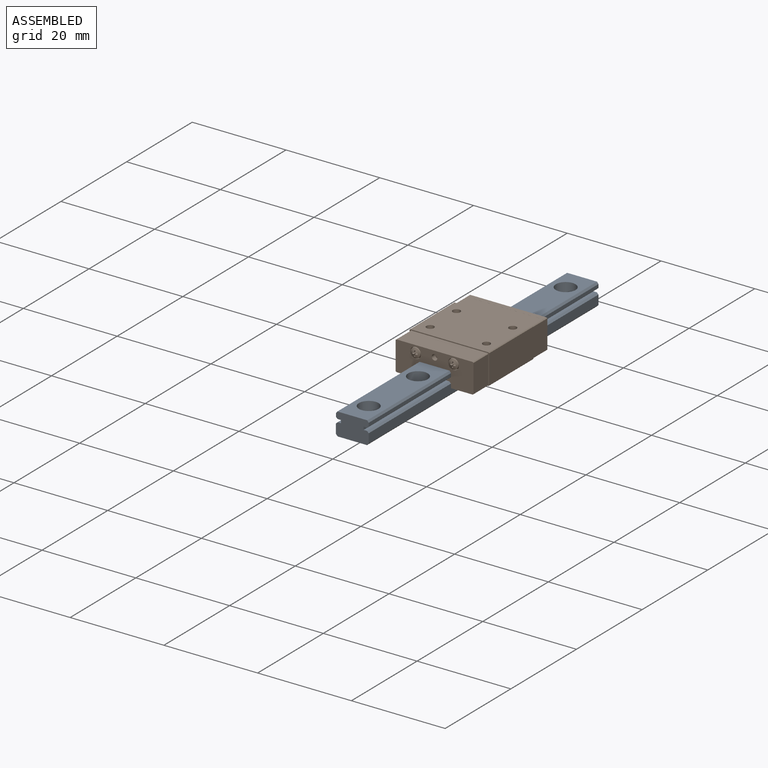
[diagram: assembled view]
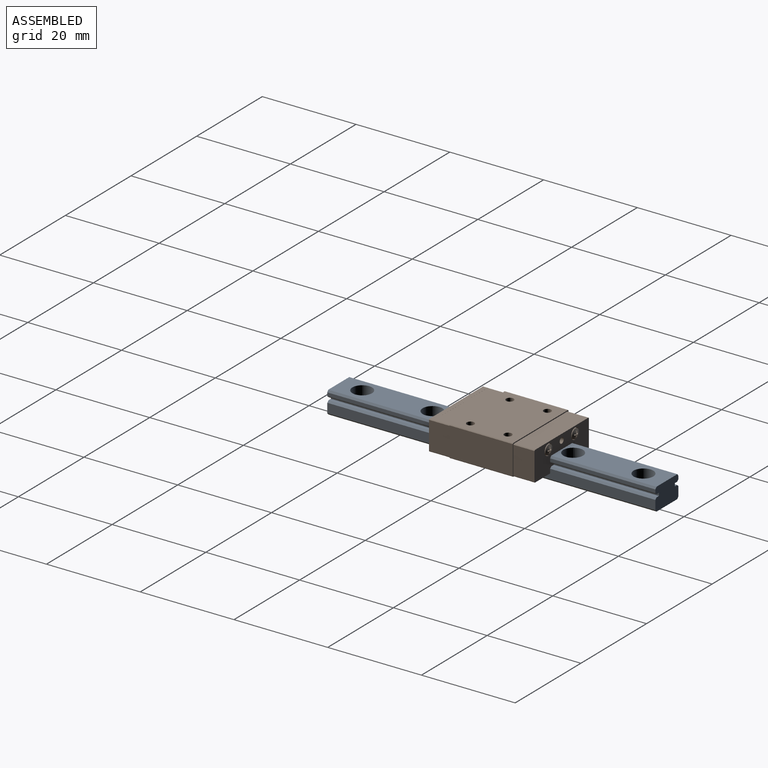
[diagram: assembled view, second angle]
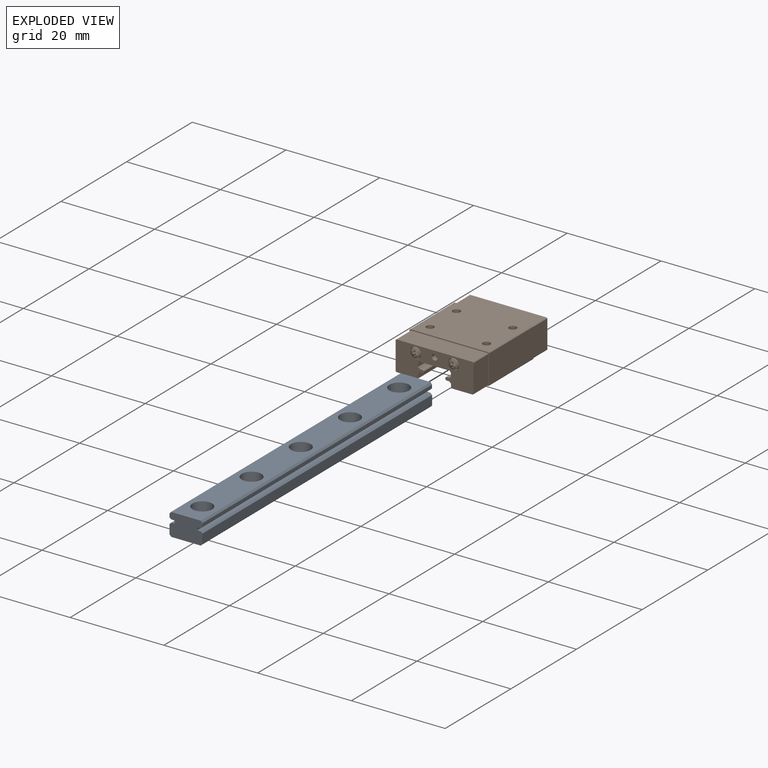
[diagram: exploded view]
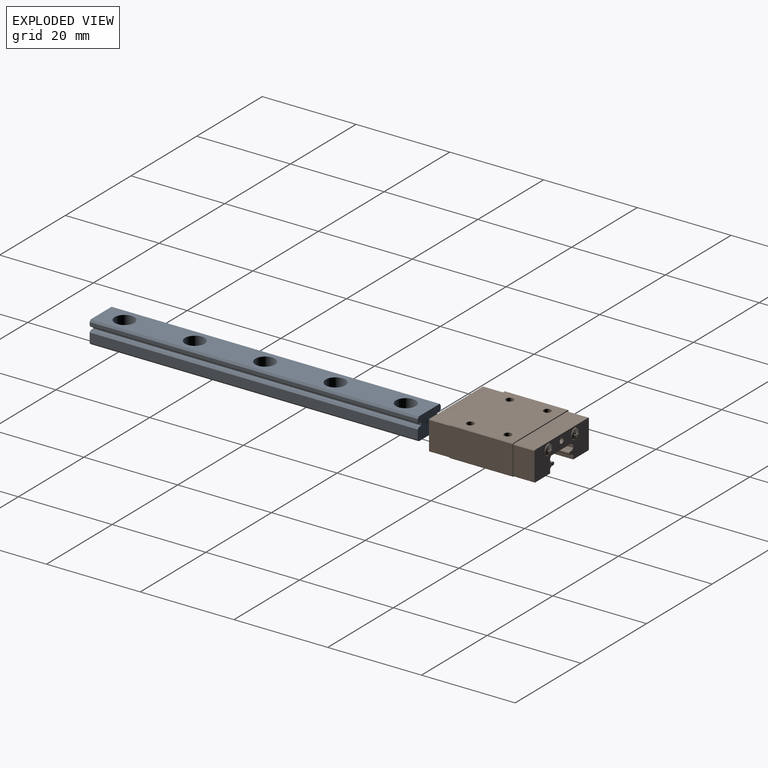
[diagram: exploded view, second angle]
ASSEMBLY  parts=2 mates=2
PART A: 37 faces, bbox 7x70x4.8 mm
  f0: plane 70x6.38mm, normal (0,0,1), area 377mm2, adj f1,f11,f12,f13,f22,f24,f26,f28
  f1: plane 70x0.4mm, normal (-0.8,0,0.6), area 35.4mm2, adj f0,f2,f11,f12
  f2: plane 70x0.73mm, normal (-1,0,0), area 51.2mm2, adj f1,f3,f11,f12
  f3: plane 70x0.34mm, normal (-0.66,0,-0.75), area 32mm2, adj f2,f4,f11,f12
  f4: plane 70x0.73mm, normal (0,0,-1), area 51.2mm2, adj f3,f5,f11,f12
  f5: plane 70x0.62mm, normal (-1,0,0), area 43.2mm2, adj f4,f6,f11,f12
  f6: plane 70x0.7mm, normal (0,0,1), area 49.2mm2, adj f5,f7,f11,f12
  f7: plane 70x0.38mm, normal (-0.68,0,0.73), area 36.2mm2, adj f6,f8,f11,f12
  f8: plane 70x2.01mm, normal (-1,0,0), area 140.9mm2, adj f7,f9,f11,f12
  f9: plane 70x0.38mm, normal (-0.71,0,-0.71), area 37.6mm2, adj f8,f10,f11,f12
  f10: plane 70x6.24mm, normal (0,0,-1), area 414.4mm2, adj f9,f11,f12,f21,f32,f33,f34,f35
  f11: plane 7x4.8mm, normal (0,-1,0), area 31.7mm2, adj f0,f1,f2,f3,f4,f5,f6,f7
  f12: plane 7x4.8mm, normal (0,1,0), area 31.7mm2, adj f0,f1,f2,f3,f4,f5,f6,f7
  f13: plane 70x0.4mm, normal (0.8,0,0.6), area 35.4mm2, adj f0,f11,f12,f14
  f14: plane 70x0.73mm, normal (1,0,0), area 51.2mm2, adj f11,f12,f13,f15
  f15: plane 70x0.34mm, normal (0.66,0,-0.75), area 32mm2, adj f11,f12,f14,f16
  f16: plane 70x0.73mm, normal (0,0,-1), area 51.2mm2, adj f11,f12,f15,f17
  f17: plane 70x0.62mm, normal (1,0,0), area 43.2mm2, adj f11,f12,f16,f18
  f18: plane 70x0.7mm, normal (0,0,1), area 49.2mm2, adj f11,f12,f17,f19
  f19: plane 70x0.38mm, normal (0.68,0,0.73), area 36.2mm2, adj f11,f12,f18,f20
  f20: plane 70x2.01mm, normal (1,0,0), area 140.9mm2, adj f11,f12,f19,f21
  f21: plane 70x0.38mm, normal (0.71,0,-0.71), area 37.6mm2, adj f10,f11,f12,f20
  f22: cylinder r=2.1mm len=4.2mm, axis (0,0,1), area 30.3mm2, adj f0,f23
  f23: plane 4.2x4.2mm, normal (0,0,1), area 9.3mm2, adj f22,f34
  f24: cylinder r=2.1mm len=4.2mm, axis (0,0,1), area 30.3mm2, adj f0,f25
  f25: plane 4.2x4.2mm, normal (0,0,1), area 9.3mm2, adj f24,f35
  f26: cylinder r=2.1mm len=4.2mm, axis (0,0,1), area 30.3mm2, adj f0,f27
  f27: plane 4.2x4.2mm, normal (0,0,1), area 9.3mm2, adj f26,f36
  f28: cylinder r=2.1mm len=4.2mm, axis (0,0,1), area 30.3mm2, adj f0,f29
  f29: plane 4.2x4.2mm, normal (0,0,1), area 9.3mm2, adj f28,f32
  f30: cylinder r=2.1mm len=4.2mm, axis (0,0,1), area 30.3mm2, adj f0,f31
  f31: plane 4.2x4.2mm, normal (0,0,1), area 9.3mm2, adj f30,f33
  f32: cylinder r=1.2mm len=2.5mm, axis (0,0,1), area 18.8mm2, adj f10,f29
  f33: cylinder r=1.2mm len=2.5mm, axis (0,0,1), area 18.8mm2, adj f10,f31
  f34: cylinder r=1.2mm len=2.5mm, axis (0,0,1), area 18.8mm2, adj f10,f23
  f35: cylinder r=1.2mm len=2.5mm, axis (0,0,1), area 18.8mm2, adj f10,f25
  f36: cylinder r=1.2mm len=2.5mm, axis (0,0,1), area 18.8mm2, adj f10,f27
PART B: 336 faces, bbox 17x23.4x6.5 mm
  f0: plane 13.5x0.15mm, normal (-0.71,0,-0.71), area 2.9mm2, adj f1,f320,f322,f323
  f1: plane 17x6.5mm, normal (0,1,0), area 6.1mm2, adj f0,f2,f167,f168,f169,f170,f171,f172
  f2: plane 13.5x0.15mm, normal (0.71,0,-0.71), area 2.9mm2, adj f1,f320,f321,f327
  f3: cylinder r=0.8mm len=2.5mm, axis (0,0,1), area 12.6mm2, adj f4,f325
  f4: cone r=889.02mm half-angle=62.7deg, axis (0,0,1), area 2.3mm2, adj f3
  f5: cylinder r=0.8mm len=2.5mm, axis (0,0,1), area 12.6mm2, adj f6,f325
  f6: cone r=889.02mm half-angle=62.7deg, axis (0,0,1), area 2.3mm2, adj f5
  f7: cylinder r=0.8mm len=2.5mm, axis (0,0,1), area 12.6mm2, adj f8,f325
  f8: cone r=889.02mm half-angle=62.7deg, axis (0,0,1), area 2.3mm2, adj f7
  f9: cylinder r=0.8mm len=2.5mm, axis (0,0,1), area 12.6mm2, adj f10,f325
  f10: cone r=889.02mm half-angle=62.7deg, axis (0,0,1), area 2.3mm2, adj f9
  f11: cylinder r=0.35mm len=20.5mm, axis (0,1,0), area 28.2mm2, adj f33,f151,f176,f297,f317,f318
  f12: cylinder r=0.35mm len=20.5mm, axis (0,1,0), area 28.2mm2, adj f31,f152,f178,f296,f310,f311
  f13: cylinder r=0.35mm len=1mm, axis (0,1,0), area 1.4mm2, adj f176,f278,f279,f284,f297
  f14: cylinder r=0.35mm len=1mm, axis (0,1,0), area 1.4mm2, adj f178,f265,f266,f284,f296
  f15: cylinder r=0.6mm len=1.2mm, axis (0,-1,0), area 3.8mm2, adj f284,f294
  f16: cylinder r=1.15mm len=2.3mm, axis (0,-1,0), area 3.6mm2, adj f260,f284
  f17: cylinder r=1.15mm len=2.3mm, axis (0,-1,0), area 3.6mm2, adj f259,f284
  f18: cone r=1.1mm half-angle=5deg, axis (0,1,0), area 4.1mm2, adj f19,f260
  f19: cone r=1.05mm half-angle=69.1deg, axis (0,1,0), area 3.1mm2, adj f18,f220,f221,f222,f223,f224,f225,f226
  f20: cone r=1.1mm half-angle=5deg, axis (0,1,0), area 4.1mm2, adj f21,f259
  f21: cone r=1.05mm half-angle=69.1deg, axis (0,1,0), area 3.1mm2, adj f20,f181,f182,f183,f184,f185,f186,f187
  f22: cylinder r=0.35mm len=1mm, axis (0,-1,0), area 1.4mm2, adj f31,f133,f134,f139,f152
  f23: cylinder r=0.35mm len=1mm, axis (0,-1,0), area 1.4mm2, adj f33,f120,f121,f139,f151
  f24: cylinder r=0.6mm len=1.2mm, axis (0,1,0), area 3.8mm2, adj f139,f149
  f25: cylinder r=1.15mm len=2.3mm, axis (0,1,0), area 3.6mm2, adj f115,f139
  f26: cylinder r=1.15mm len=2.3mm, axis (0,1,0), area 3.6mm2, adj f114,f139
  f27: cone r=1.1mm half-angle=5deg, axis (0,-1,0), area 4.1mm2, adj f28,f115
  f28: cone r=1.05mm half-angle=69.1deg, axis (0,-1,0), area 3.1mm2, adj f27,f75,f76,f77,f78,f79,f80,f81
  f29: cone r=1.1mm half-angle=5deg, axis (0,-1,0), area 4.1mm2, adj f30,f114
  f30: cone r=1.05mm half-angle=69.1deg, axis (0,-1,0), area 3.1mm2, adj f29,f36,f37,f38,f39,f40,f41,f42
  f31: plane 0.82x0.15mm, normal (0,-1,0), area 0mm2, adj f12,f22,f132,f133,f163,f311
  f32: plane 16.6x6.3mm, normal (0,-1,0), area 0.2mm2, adj f116,f138,f140,f141,f142,f143,f144,f145
  f33: plane 0.82x0.15mm, normal (0,-1,0), area 0mm2, adj f11,f23,f121,f122,f158,f317
  f34: plane 0.21x0.16mm, normal (0,-1,0), area 0mm2, adj f123,f124,f159,f160
  f35: plane 0.21x0.16mm, normal (0,-1,0), area 0mm2, adj f130,f131,f161,f162
  f36: plane 0.57x0.01mm, normal (-0.99,0,-0.16), area 0mm2, adj f30,f40,f47,f53
  f37: plane 0.73x0.45mm, normal (-0.99,0,-0.16), area 0.3mm2, adj f30,f43,f44,f47
  f38: plane 0.57x0.07mm, normal (-0.16,0,0.99), area 0mm2, adj f30,f42,f45,f47
  f39: plane 0.57x0.03mm, normal (0.16,0,-0.99), area 0mm2, adj f30,f41,f47,f48
  f40: plane 0.57x0.07mm, normal (0.16,0,-0.99), area 0mm2, adj f30,f36,f46,f47
  f41: plane 0.73x0.45mm, normal (0.99,0,0.16), area 0.3mm2, adj f30,f39,f47,f70
  f42: plane 0.57x0.01mm, normal (0.99,0,0.16), area 0mm2, adj f30,f38,f47,f51
  f43: plane 0.57x0.03mm, normal (-0.16,0,0.99), area 0mm2, adj f30,f37,f47,f50
  f44: plane 0.73x0.46mm, normal (0,0,1), area 0.3mm2, adj f30,f37,f47,f72
  f45: plane 0.57x0.08mm, normal (0,0,1), area 0mm2, adj f30,f38,f47,f68
  f46: plane 0.57x0.08mm, normal (0,0,-1), area 0mm2, adj f30,f40,f47,f65
  f47: plane 1.22x1.2mm, normal (0,1,0), area 0.6mm2, adj f36,f37,f38,f39,f40,f41,f42,f43
  f48: plane 0.57x0.01mm, normal (0.99,0,0.1), area 0mm2, adj f30,f39,f47,f52
  f49: plane 0.57x0.01mm, normal (-0.99,0,-0.1), area 0mm2, adj f30,f47,f53,f61
  f50: plane 0.57x0.01mm, normal (-0.99,0,-0.1), area 0mm2, adj f30,f43,f47,f55
  f51: plane 0.57x0.03mm, normal (-0.1,0,0.99), area 0mm2, adj f30,f42,f47,f54
  f52: plane 0.57x0.03mm, normal (0.1,0,-0.99), area 0mm2, adj f30,f47,f48,f56
  f53: plane 0.57x0.03mm, normal (0.1,0,-0.99), area 0mm2, adj f30,f36,f47,f49
  f54: plane 0.57x0.01mm, normal (0.99,0,0.1), area 0mm2, adj f30,f47,f51,f59
  f55: plane 0.57x0.03mm, normal (-0.1,0,0.99), area 0mm2, adj f30,f47,f50,f58
  f56: plane 0.57x0.01mm, normal (1,0,0.05), area 0mm2, adj f30,f47,f52,f60
  f57: plane 0.57x0.01mm, normal (-1,0,-0.05), area 0mm2, adj f30,f47,f61,f66
  f58: plane 0.57x0.01mm, normal (-1,0,-0.05), area 0mm2, adj f30,f47,f55,f63
  f59: plane 0.57x0.03mm, normal (-0.05,0,1), area 0mm2, adj f30,f47,f54,f62
  f60: plane 0.57x0.03mm, normal (0.05,0,-1), area 0mm2, adj f30,f47,f56,f65
  f61: plane 0.57x0.03mm, normal (0.05,0,-1), area 0mm2, adj f30,f47,f49,f57
  f62: plane 0.57x0.01mm, normal (1,0,0.05), area 0mm2, adj f30,f47,f59,f64
  f63: plane 0.57x0.03mm, normal (-0.05,0,1), area 0mm2, adj f30,f47,f58,f68
  f64: plane 0.57x0.03mm, normal (0,0,1), area 0mm2, adj f30,f47,f62,f69
  f65: plane 0.57x0.01mm, normal (1,0,0), area 0mm2, adj f30,f46,f47,f60
  f66: plane 0.57x0.03mm, normal (0,0,-1), area 0mm2, adj f30,f47,f57,f67
  f67: plane 0.74x0.48mm, normal (-1,0,0), area 0.3mm2, adj f30,f47,f66,f73
  f68: plane 0.57x0.01mm, normal (-1,0,0), area 0mm2, adj f30,f45,f47,f63
  f69: plane 0.74x0.48mm, normal (1,0,0), area 0.3mm2, adj f30,f47,f64,f71
  f70: plane 0.73x0.46mm, normal (0,0,-1), area 0.3mm2, adj f30,f41,f47,f74
  f71: plane 0.74x0.48mm, normal (0,0,1), area 0.3mm2, adj f30,f47,f69,f74
  f72: plane 0.57x0.24mm, normal (-1,0,0), area 0.1mm2, adj f30,f44,f47,f73
  f73: plane 0.74x0.48mm, normal (0,0,-1), area 0.3mm2, adj f30,f47,f67,f72
  f74: plane 0.57x0.24mm, normal (1,0,0), area 0.1mm2, adj f30,f47,f70,f71
  f75: plane 0.57x0.01mm, normal (-0.99,0,-0.16), area 0mm2, adj f28,f79,f86,f92
  f76: plane 0.73x0.45mm, normal (-0.99,0,-0.16), area 0.3mm2, adj f28,f82,f83,f86
  f77: plane 0.57x0.07mm, normal (-0.16,0,0.99), area 0mm2, adj f28,f81,f84,f86
  f78: plane 0.57x0.03mm, normal (0.16,0,-0.99), area 0mm2, adj f28,f80,f86,f87
  f79: plane 0.57x0.07mm, normal (0.16,0,-0.99), area 0mm2, adj f28,f75,f85,f86
  f80: plane 0.73x0.45mm, normal (0.99,0,0.16), area 0.3mm2, adj f28,f78,f86,f109
  f81: plane 0.57x0.01mm, normal (0.99,0,0.16), area 0mm2, adj f28,f77,f86,f90
  f82: plane 0.57x0.03mm, normal (-0.16,0,0.99), area 0mm2, adj f28,f76,f86,f89
  f83: plane 0.73x0.46mm, normal (0,0,1), area 0.3mm2, adj f28,f76,f86,f111
  f84: plane 0.57x0.08mm, normal (0,0,1), area 0mm2, adj f28,f77,f86,f107
  f85: plane 0.57x0.08mm, normal (0,0,-1), area 0mm2, adj f28,f79,f86,f104
  f86: plane 1.22x1.2mm, normal (0,1,0), area 0.6mm2, adj f75,f76,f77,f78,f79,f80,f81,f82
  f87: plane 0.57x0.01mm, normal (0.99,0,0.1), area 0mm2, adj f28,f78,f86,f91
  f88: plane 0.57x0.01mm, normal (-0.99,0,-0.1), area 0mm2, adj f28,f86,f92,f100
  f89: plane 0.57x0.01mm, normal (-0.99,0,-0.1), area 0mm2, adj f28,f82,f86,f94
  f90: plane 0.57x0.03mm, normal (-0.1,0,0.99), area 0mm2, adj f28,f81,f86,f93
  f91: plane 0.57x0.03mm, normal (0.1,0,-0.99), area 0mm2, adj f28,f86,f87,f95
  f92: plane 0.57x0.03mm, normal (0.1,0,-0.99), area 0mm2, adj f28,f75,f86,f88
  f93: plane 0.57x0.01mm, normal (0.99,0,0.1), area 0mm2, adj f28,f86,f90,f98
  f94: plane 0.57x0.03mm, normal (-0.1,0,0.99), area 0mm2, adj f28,f86,f89,f97
  f95: plane 0.57x0.01mm, normal (1,0,0.05), area 0mm2, adj f28,f86,f91,f99
  f96: plane 0.57x0.01mm, normal (-1,0,-0.05), area 0mm2, adj f28,f86,f100,f105
  f97: plane 0.57x0.01mm, normal (-1,0,-0.05), area 0mm2, adj f28,f86,f94,f102
  f98: plane 0.57x0.03mm, normal (-0.05,0,1), area 0mm2, adj f28,f86,f93,f101
  f99: plane 0.57x0.03mm, normal (0.05,0,-1), area 0mm2, adj f28,f86,f95,f104
  f100: plane 0.57x0.03mm, normal (0.05,0,-1), area 0mm2, adj f28,f86,f88,f96
  f101: plane 0.57x0.01mm, normal (1,0,0.05), area 0mm2, adj f28,f86,f98,f103
  f102: plane 0.57x0.03mm, normal (-0.05,0,1), area 0mm2, adj f28,f86,f97,f107
  f103: plane 0.57x0.03mm, normal (0,0,1), area 0mm2, adj f28,f86,f101,f108
  f104: plane 0.57x0.01mm, normal (1,0,0), area 0mm2, adj f28,f85,f86,f99
  f105: plane 0.57x0.03mm, normal (0,0,-1), area 0mm2, adj f28,f86,f96,f106
  f106: plane 0.74x0.48mm, normal (-1,0,0), area 0.3mm2, adj f28,f86,f105,f112
  f107: plane 0.57x0.01mm, normal (-1,0,0), area 0mm2, adj f28,f84,f86,f102
  f108: plane 0.74x0.48mm, normal (1,0,0), area 0.3mm2, adj f28,f86,f103,f110
  f109: plane 0.73x0.46mm, normal (0,0,-1), area 0.3mm2, adj f28,f80,f86,f113
  f110: plane 0.74x0.48mm, normal (0,0,1), area 0.3mm2, adj f28,f86,f108,f113
  f111: plane 0.57x0.24mm, normal (-1,0,0), area 0.1mm2, adj f28,f83,f86,f112
  f112: plane 0.74x0.48mm, normal (0,0,-1), area 0.3mm2, adj f28,f86,f106,f111
  f113: plane 0.57x0.24mm, normal (1,0,0), area 0.1mm2, adj f28,f86,f109,f110
  f114: plane 2.3x2.3mm, normal (0,1,0), area 0.4mm2, adj f26,f29
  f115: plane 2.3x2.3mm, normal (0,1,0), area 0.4mm2, adj f25,f27
  f116: plane 1x0.85mm, normal (-1,0,0), area 0.9mm2, adj f32,f117,f139,f141,f151
  f117: cylinder r=0.1mm len=1mm, axis (0,1,0), area 0.1mm2, adj f116,f118,f139,f151
  f118: cylinder r=0.7mm len=1mm, axis (0,-1,0), area 0.4mm2, adj f117,f119,f139,f151
  f119: cylinder r=0.1mm len=1mm, axis (0,1,0), area 0.1mm2, adj f118,f120,f139,f151
  f120: plane 1x0.33mm, normal (0,0,-1), area 0.3mm2, adj f23,f119,f139,f151
  f121: plane 1x0.33mm, normal (0,0,1), area 0.3mm2, adj f23,f33,f122,f139
  f122: cylinder r=0.1mm len=1mm, axis (0,1,0), area 0.1mm2, adj f33,f121,f123,f139,f150
  f123: cylinder r=0.7mm len=1mm, axis (0,-1,0), area 0.4mm2, adj f34,f122,f124,f139,f150
  f124: cylinder r=0.1mm len=1mm, axis (0,1,0), area 0.1mm2, adj f34,f123,f125,f139,f154
  f125: plane 1x0.65mm, normal (-1,0,0), area 0.7mm2, adj f124,f126,f139,f154
  f126: plane 1x0.39mm, normal (-0.79,0,-0.61), area 0.5mm2, adj f125,f127,f139,f154
  f127: plane 6.41x1mm, normal (0,0,-1), area 6.4mm2, adj f126,f128,f139,f154
  f128: plane 1x0.39mm, normal (0.79,0,-0.61), area 0.5mm2, adj f127,f129,f139,f154
  f129: plane 1x0.65mm, normal (1,0,0), area 0.7mm2, adj f128,f130,f139,f154
  f130: cylinder r=0.1mm len=1mm, axis (0,1,0), area 0.1mm2, adj f35,f129,f131,f139,f154
  f131: cylinder r=0.7mm len=1mm, axis (0,-1,0), area 0.4mm2, adj f35,f130,f132,f139,f153
  f132: cylinder r=0.1mm len=1mm, axis (0,1,0), area 0.1mm2, adj f31,f131,f133,f139,f153
  f133: plane 1x0.33mm, normal (0,0,1), area 0.3mm2, adj f22,f31,f132,f139
  f134: plane 1x0.33mm, normal (0,0,-1), area 0.3mm2, adj f22,f135,f139,f152
  f135: cylinder r=0.1mm len=1mm, axis (0,1,0), area 0.1mm2, adj f134,f136,f139,f152
  f136: cylinder r=0.7mm len=1mm, axis (0,-1,0), area 0.4mm2, adj f135,f137,f139,f152
  f137: cylinder r=0.1mm len=1mm, axis (0,1,0), area 0.1mm2, adj f136,f138,f139,f152
  f138: plane 1x0.85mm, normal (1,0,0), area 0.9mm2, adj f32,f137,f139,f140,f152
  f139: plane 16.6x6.3mm, normal (0,1,0), area 73.8mm2, adj f22,f23,f24,f25,f26,f116,f117,f118
  f140: plane 4.64x1mm, normal (0,0,-1), area 4.6mm2, adj f32,f138,f139,f147
  f141: plane 4.64x1mm, normal (0,0,-1), area 4.6mm2, adj f32,f116,f139,f148
  f142: plane 6x1mm, normal (1,0,0), area 6mm2, adj f32,f139,f143,f148
  f143: plane 1x0.15mm, normal (0.71,0,0.71), area 0.2mm2, adj f32,f139,f142,f144
  f144: plane 16.3x1mm, normal (0,0,1), area 16.3mm2, adj f32,f139,f143,f145
  f145: plane 1x0.15mm, normal (-0.71,0,0.71), area 0.2mm2, adj f32,f139,f144,f146
  f146: plane 6x1mm, normal (-1,0,0), area 6mm2, adj f32,f139,f145,f147
  f147: plane 1x0.15mm, normal (-0.71,0,-0.71), area 0.2mm2, adj f32,f139,f140,f146
  f148: plane 1x0.15mm, normal (0.71,0,-0.71), area 0.2mm2, adj f32,f139,f141,f142
  f149: plane 1.2x1.2mm, normal (0,1,0), area 1.1mm2, adj f24
  f150: plane 0.12x0.09mm, normal (0,1,0), area 0mm2, adj f122,f123,f158,f159
  f151: plane 1.76x1.22mm, normal (0,1,0), area 0mm2, adj f11,f23,f116,f117,f118,f119,f120,f155
  f152: plane 1.76x1.22mm, normal (0,1,0), area 0mm2, adj f12,f22,f134,f135,f136,f137,f138,f164
  f153: plane 0.12x0.09mm, normal (0,1,0), area 0mm2, adj f131,f132,f162,f163
  f154: plane 7.01x1.11mm, normal (0,1,0), area 0.1mm2, adj f124,f125,f126,f127,f128,f129,f130,f160
  f155: cylinder r=0.1mm len=20.5mm, axis (0,1,0), area 2.2mm2, adj f151,f156,f297,f319
  f156: cylinder r=0.7mm len=20.5mm, axis (0,-1,0), area 7.5mm2, adj f151,f155,f157,f297
  f157: cylinder r=0.1mm len=20.5mm, axis (0,1,0), area 2.1mm2, adj f151,f156,f297,f318
  f158: cylinder r=0.1mm len=20.5mm, axis (0,1,0), area 2.1mm2, adj f33,f150,f159,f176,f298,f317
  f159: cylinder r=0.7mm len=20.5mm, axis (0,-1,0), area 7.5mm2, adj f34,f150,f158,f160,f180,f298
  f160: cylinder r=0.1mm len=20.5mm, axis (0,1,0), area 2.2mm2, adj f34,f154,f159,f180,f299,f316
  f161: cylinder r=0.1mm len=20.5mm, axis (0,1,0), area 2.2mm2, adj f35,f154,f162,f179,f299,f312
  f162: cylinder r=0.7mm len=20.5mm, axis (0,-1,0), area 7.5mm2, adj f35,f153,f161,f163,f179,f295
  f163: cylinder r=0.1mm len=20.5mm, axis (0,1,0), area 2.1mm2, adj f31,f153,f162,f178,f295,f311
  f164: cylinder r=0.1mm len=20.5mm, axis (0,1,0), area 2.1mm2, adj f152,f165,f296,f310
  f165: cylinder r=0.7mm len=20.5mm, axis (0,-1,0), area 7.5mm2, adj f152,f164,f166,f296
  f166: cylinder r=0.1mm len=20.5mm, axis (0,1,0), area 2.2mm2, adj f152,f165,f296,f309
  f167: plane 4.65x3.5mm, normal (0,0,-1), area 16.3mm2, adj f1,f32,f152,f174,f309
  f168: plane 4.65x3.5mm, normal (0,0,-1), area 16.3mm2, adj f1,f32,f151,f175,f319
  f169: plane 5.99x3.5mm, normal (1,0,0), area 21mm2, adj f1,f32,f170,f175
  f170: plane 3.5x0.15mm, normal (0.71,0,0.71), area 0.7mm2, adj f1,f32,f169,f171
  f171: plane 16.29x3.5mm, normal (0,0,1), area 57mm2, adj f1,f32,f170,f172
  f172: plane 3.5x0.15mm, normal (-0.71,0,0.71), area 0.7mm2, adj f1,f32,f171,f173
  f173: plane 5.99x3.5mm, normal (-1,0,0), area 21mm2, adj f1,f32,f172,f174
  f174: plane 3.5x0.15mm, normal (-0.71,0,-0.71), area 0.7mm2, adj f1,f32,f167,f173
  f175: plane 3.5x0.15mm, normal (0.71,0,-0.71), area 0.7mm2, adj f1,f32,f168,f169
  f176: plane 0.82x0.15mm, normal (0,1,0), area 0mm2, adj f11,f13,f158,f277,f278,f317
  f177: plane 16.6x6.3mm, normal (0,1,0), area 0.2mm2, adj f261,f283,f285,f286,f287,f288,f289,f290
  f178: plane 0.82x0.15mm, normal (0,1,0), area 0mm2, adj f12,f14,f163,f266,f267,f311
  f179: plane 0.21x0.16mm, normal (0,1,0), area 0mm2, adj f161,f162,f268,f269
  f180: plane 0.21x0.16mm, normal (0,1,0), area 0mm2, adj f159,f160,f275,f276
  f181: plane 0.57x0.01mm, normal (0.99,0,-0.16), area 0mm2, adj f21,f185,f192,f198
  f182: plane 0.73x0.45mm, normal (0.99,0,-0.16), area 0.3mm2, adj f21,f188,f189,f192
  f183: plane 0.57x0.07mm, normal (0.16,0,0.99), area 0mm2, adj f21,f187,f190,f192
  f184: plane 0.57x0.03mm, normal (-0.16,0,-0.99), area 0mm2, adj f21,f186,f192,f193
  f185: plane 0.57x0.07mm, normal (-0.16,0,-0.99), area 0mm2, adj f21,f181,f191,f192
  f186: plane 0.73x0.45mm, normal (-0.99,0,0.16), area 0.3mm2, adj f21,f184,f192,f215
  f187: plane 0.57x0.01mm, normal (-0.99,0,0.16), area 0mm2, adj f21,f183,f192,f196
  f188: plane 0.57x0.03mm, normal (0.16,0,0.99), area 0mm2, adj f21,f182,f192,f195
  f189: plane 0.73x0.46mm, normal (0,0,1), area 0.3mm2, adj f21,f182,f192,f217
  f190: plane 0.57x0.08mm, normal (0,0,1), area 0mm2, adj f21,f183,f192,f213
  f191: plane 0.57x0.08mm, normal (0,0,-1), area 0mm2, adj f21,f185,f192,f210
  f192: plane 1.22x1.2mm, normal (0,-1,0), area 0.6mm2, adj f181,f182,f183,f184,f185,f186,f187,f188
  f193: plane 0.57x0.01mm, normal (-0.99,0,0.1), area 0mm2, adj f21,f184,f192,f197
  f194: plane 0.57x0.01mm, normal (0.99,0,-0.1), area 0mm2, adj f21,f192,f198,f206
  f195: plane 0.57x0.01mm, normal (0.99,0,-0.1), area 0mm2, adj f21,f188,f192,f200
  f196: plane 0.57x0.03mm, normal (0.1,0,0.99), area 0mm2, adj f21,f187,f192,f199
  f197: plane 0.57x0.03mm, normal (-0.1,0,-0.99), area 0mm2, adj f21,f192,f193,f201
  f198: plane 0.57x0.03mm, normal (-0.1,0,-0.99), area 0mm2, adj f21,f181,f192,f194
  f199: plane 0.57x0.01mm, normal (-0.99,0,0.1), area 0mm2, adj f21,f192,f196,f204
  f200: plane 0.57x0.03mm, normal (0.1,0,0.99), area 0mm2, adj f21,f192,f195,f203
  f201: plane 0.57x0.01mm, normal (-1,0,0.05), area 0mm2, adj f21,f192,f197,f205
  f202: plane 0.57x0.01mm, normal (1,0,-0.05), area 0mm2, adj f21,f192,f206,f211
  f203: plane 0.57x0.01mm, normal (1,0,-0.05), area 0mm2, adj f21,f192,f200,f208
  f204: plane 0.57x0.03mm, normal (0.05,0,1), area 0mm2, adj f21,f192,f199,f207
  f205: plane 0.57x0.03mm, normal (-0.05,0,-1), area 0mm2, adj f21,f192,f201,f210
  f206: plane 0.57x0.03mm, normal (-0.05,0,-1), area 0mm2, adj f21,f192,f194,f202
  f207: plane 0.57x0.01mm, normal (-1,0,0.05), area 0mm2, adj f21,f192,f204,f209
  f208: plane 0.57x0.03mm, normal (0.05,0,1), area 0mm2, adj f21,f192,f203,f213
  f209: plane 0.57x0.03mm, normal (0,0,1), area 0mm2, adj f21,f192,f207,f214
  f210: plane 0.57x0.01mm, normal (-1,0,0), area 0mm2, adj f21,f191,f192,f205
  f211: plane 0.57x0.03mm, normal (0,0,-1), area 0mm2, adj f21,f192,f202,f212
  f212: plane 0.74x0.48mm, normal (1,0,0), area 0.3mm2, adj f21,f192,f211,f218
  f213: plane 0.57x0.01mm, normal (1,0,0), area 0mm2, adj f21,f190,f192,f208
  f214: plane 0.74x0.48mm, normal (-1,0,0), area 0.3mm2, adj f21,f192,f209,f216
  f215: plane 0.73x0.46mm, normal (0,0,-1), area 0.3mm2, adj f21,f186,f192,f219
  f216: plane 0.74x0.48mm, normal (0,0,1), area 0.3mm2, adj f21,f192,f214,f219
  f217: plane 0.57x0.24mm, normal (1,0,0), area 0.1mm2, adj f21,f189,f192,f218
  f218: plane 0.74x0.48mm, normal (0,0,-1), area 0.3mm2, adj f21,f192,f212,f217
  f219: plane 0.57x0.24mm, normal (-1,0,0), area 0.1mm2, adj f21,f192,f215,f216
  f220: plane 0.57x0.01mm, normal (0.99,0,-0.16), area 0mm2, adj f19,f224,f231,f237
  f221: plane 0.73x0.45mm, normal (0.99,0,-0.16), area 0.3mm2, adj f19,f227,f228,f231
  f222: plane 0.57x0.07mm, normal (0.16,0,0.99), area 0mm2, adj f19,f226,f229,f231
  f223: plane 0.57x0.03mm, normal (-0.16,0,-0.99), area 0mm2, adj f19,f225,f231,f232
  f224: plane 0.57x0.07mm, normal (-0.16,0,-0.99), area 0mm2, adj f19,f220,f230,f231
  f225: plane 0.73x0.45mm, normal (-0.99,0,0.16), area 0.3mm2, adj f19,f223,f231,f254
  f226: plane 0.57x0.01mm, normal (-0.99,0,0.16), area 0mm2, adj f19,f222,f231,f235
  f227: plane 0.57x0.03mm, normal (0.16,0,0.99), area 0mm2, adj f19,f221,f231,f234
  f228: plane 0.73x0.46mm, normal (0,0,1), area 0.3mm2, adj f19,f221,f231,f256
  f229: plane 0.57x0.08mm, normal (0,0,1), area 0mm2, adj f19,f222,f231,f252
  f230: plane 0.57x0.08mm, normal (0,0,-1), area 0mm2, adj f19,f224,f231,f249
  f231: plane 1.22x1.2mm, normal (0,-1,0), area 0.6mm2, adj f220,f221,f222,f223,f224,f225,f226,f227
  f232: plane 0.57x0.01mm, normal (-0.99,0,0.1), area 0mm2, adj f19,f223,f231,f236
  f233: plane 0.57x0.01mm, normal (0.99,0,-0.1), area 0mm2, adj f19,f231,f237,f245
  f234: plane 0.57x0.01mm, normal (0.99,0,-0.1), area 0mm2, adj f19,f227,f231,f239
  f235: plane 0.57x0.03mm, normal (0.1,0,0.99), area 0mm2, adj f19,f226,f231,f238
  f236: plane 0.57x0.03mm, normal (-0.1,0,-0.99), area 0mm2, adj f19,f231,f232,f240
  f237: plane 0.57x0.03mm, normal (-0.1,0,-0.99), area 0mm2, adj f19,f220,f231,f233
  f238: plane 0.57x0.01mm, normal (-0.99,0,0.1), area 0mm2, adj f19,f231,f235,f243
  f239: plane 0.57x0.03mm, normal (0.1,0,0.99), area 0mm2, adj f19,f231,f234,f242
  f240: plane 0.57x0.01mm, normal (-1,0,0.05), area 0mm2, adj f19,f231,f236,f244
  f241: plane 0.57x0.01mm, normal (1,0,-0.05), area 0mm2, adj f19,f231,f245,f250
  f242: plane 0.57x0.01mm, normal (1,0,-0.05), area 0mm2, adj f19,f231,f239,f247
  f243: plane 0.57x0.03mm, normal (0.05,0,1), area 0mm2, adj f19,f231,f238,f246
  f244: plane 0.57x0.03mm, normal (-0.05,0,-1), area 0mm2, adj f19,f231,f240,f249
  f245: plane 0.57x0.03mm, normal (-0.05,0,-1), area 0mm2, adj f19,f231,f233,f241
  f246: plane 0.57x0.01mm, normal (-1,0,0.05), area 0mm2, adj f19,f231,f243,f248
  f247: plane 0.57x0.03mm, normal (0.05,0,1), area 0mm2, adj f19,f231,f242,f252
  f248: plane 0.57x0.03mm, normal (0,0,1), area 0mm2, adj f19,f231,f246,f253
  f249: plane 0.57x0.01mm, normal (-1,0,0), area 0mm2, adj f19,f230,f231,f244
  f250: plane 0.57x0.03mm, normal (0,0,-1), area 0mm2, adj f19,f231,f241,f251
  f251: plane 0.74x0.48mm, normal (1,0,0), area 0.3mm2, adj f19,f231,f250,f257
  f252: plane 0.57x0.01mm, normal (1,0,0), area 0mm2, adj f19,f229,f231,f247
  f253: plane 0.74x0.48mm, normal (-1,0,0), area 0.3mm2, adj f19,f231,f248,f255
  f254: plane 0.73x0.46mm, normal (0,0,-1), area 0.3mm2, adj f19,f225,f231,f258
  f255: plane 0.74x0.48mm, normal (0,0,1), area 0.3mm2, adj f19,f231,f253,f258
  f256: plane 0.57x0.24mm, normal (1,0,0), area 0.1mm2, adj f19,f228,f231,f257
  f257: plane 0.74x0.48mm, normal (0,0,-1), area 0.3mm2, adj f19,f231,f251,f256
  f258: plane 0.57x0.24mm, normal (-1,0,0), area 0.1mm2, adj f19,f231,f254,f255
  f259: plane 2.3x2.3mm, normal (0,-1,0), area 0.4mm2, adj f17,f20
  f260: plane 2.3x2.3mm, normal (0,-1,0), area 0.4mm2, adj f16,f18
  f261: plane 1x0.85mm, normal (1,0,0), area 0.9mm2, adj f177,f262,f284,f286,f296
  f262: cylinder r=0.1mm len=1mm, axis (0,-1,0), area 0.1mm2, adj f261,f263,f284,f296
  f263: cylinder r=0.7mm len=1mm, axis (0,1,0), area 0.4mm2, adj f262,f264,f284,f296
  f264: cylinder r=0.1mm len=1mm, axis (0,-1,0), area 0.1mm2, adj f263,f265,f284,f296
  f265: plane 1x0.33mm, normal (0,0,-1), area 0.3mm2, adj f14,f264,f284,f296
  f266: plane 1x0.33mm, normal (0,0,1), area 0.3mm2, adj f14,f178,f267,f284
  f267: cylinder r=0.1mm len=1mm, axis (0,-1,0), area 0.1mm2, adj f178,f266,f268,f284,f295
  f268: cylinder r=0.7mm len=1mm, axis (0,1,0), area 0.4mm2, adj f179,f267,f269,f284,f295
  f269: cylinder r=0.1mm len=1mm, axis (0,-1,0), area 0.1mm2, adj f179,f268,f270,f284,f299
  f270: plane 1x0.65mm, normal (1,0,0), area 0.7mm2, adj f269,f271,f284,f299
  f271: plane 1x0.39mm, normal (0.79,0,-0.61), area 0.5mm2, adj f270,f272,f284,f299
  f272: plane 6.41x1mm, normal (0,0,-1), area 6.4mm2, adj f271,f273,f284,f299
  f273: plane 1x0.39mm, normal (-0.79,0,-0.61), area 0.5mm2, adj f272,f274,f284,f299
  f274: plane 1x0.65mm, normal (-1,0,0), area 0.7mm2, adj f273,f275,f284,f299
  f275: cylinder r=0.1mm len=1mm, axis (0,-1,0), area 0.1mm2, adj f180,f274,f276,f284,f299
  f276: cylinder r=0.7mm len=1mm, axis (0,1,0), area 0.4mm2, adj f180,f275,f277,f284,f298
  f277: cylinder r=0.1mm len=1mm, axis (0,-1,0), area 0.1mm2, adj f176,f276,f278,f284,f298
  f278: plane 1x0.33mm, normal (0,0,1), area 0.3mm2, adj f13,f176,f277,f284
  f279: plane 1x0.33mm, normal (0,0,-1), area 0.3mm2, adj f13,f280,f284,f297
  f280: cylinder r=0.1mm len=1mm, axis (0,-1,0), area 0.1mm2, adj f279,f281,f284,f297
  f281: cylinder r=0.7mm len=1mm, axis (0,1,0), area 0.4mm2, adj f280,f282,f284,f297
  f282: cylinder r=0.1mm len=1mm, axis (0,-1,0), area 0.1mm2, adj f281,f283,f284,f297
  f283: plane 1x0.85mm, normal (-1,0,0), area 0.9mm2, adj f177,f282,f284,f285,f297
  f284: plane 16.6x6.3mm, normal (0,-1,0), area 73.8mm2, adj f13,f14,f15,f16,f17,f261,f262,f263
  f285: plane 4.64x1mm, normal (0,0,-1), area 4.6mm2, adj f177,f283,f284,f292
  f286: plane 4.64x1mm, normal (0,0,-1), area 4.6mm2, adj f177,f261,f284,f293
  f287: plane 6x1mm, normal (-1,0,0), area 6mm2, adj f177,f284,f288,f293
  f288: plane 1x0.15mm, normal (-0.71,0,0.71), area 0.2mm2, adj f177,f284,f287,f289
  f289: plane 16.3x1mm, normal (0,0,1), area 16.3mm2, adj f177,f284,f288,f290
  f290: plane 1x0.15mm, normal (0.71,0,0.71), area 0.2mm2, adj f177,f284,f289,f291
  f291: plane 6x1mm, normal (1,0,0), area 6mm2, adj f177,f284,f290,f292
  f292: plane 1x0.15mm, normal (0.71,0,-0.71), area 0.2mm2, adj f177,f284,f285,f291
  f293: plane 1x0.15mm, normal (-0.71,0,-0.71), area 0.2mm2, adj f177,f284,f286,f287
  f294: plane 1.2x1.2mm, normal (0,-1,0), area 1.1mm2, adj f15
  f295: plane 0.12x0.09mm, normal (0,-1,0), area 0mm2, adj f162,f163,f267,f268
  f296: plane 1.76x1.22mm, normal (0,-1,0), area 0mm2, adj f12,f14,f164,f165,f166,f261,f262,f263
  f297: plane 1.76x1.22mm, normal (0,-1,0), area 0mm2, adj f11,f13,f155,f156,f157,f279,f280,f281
  f298: plane 0.12x0.09mm, normal (0,-1,0), area 0mm2, adj f158,f159,f276,f277
  f299: plane 7.01x1.11mm, normal (0,-1,0), area 0.1mm2, adj f160,f161,f269,f270,f271,f272,f273,f274
  f300: plane 4.65x3.5mm, normal (0,0,-1), area 16.3mm2, adj f177,f297,f307,f319,f320
  f301: plane 4.65x3.5mm, normal (0,0,-1), area 16.3mm2, adj f177,f296,f308,f309,f320
  f302: plane 5.99x3.5mm, normal (-1,0,0), area 21mm2, adj f177,f303,f308,f320
  f303: plane 3.5x0.15mm, normal (-0.71,0,0.71), area 0.7mm2, adj f177,f302,f304,f320
  f304: plane 16.29x3.5mm, normal (0,0,1), area 57mm2, adj f177,f303,f305,f320
  f305: plane 3.5x0.15mm, normal (0.71,0,0.71), area 0.7mm2, adj f177,f304,f306,f320
  f306: plane 5.99x3.5mm, normal (1,0,0), area 21mm2, adj f177,f305,f307,f320
  f307: plane 3.5x0.15mm, normal (0.71,0,-0.71), area 0.7mm2, adj f177,f300,f306,f320
  f308: plane 3.5x0.15mm, normal (-0.71,0,-0.71), area 0.7mm2, adj f177,f301,f302,f320
  f309: plane 20.5x0.85mm, normal (1,0,0), area 17.4mm2, adj f1,f152,f166,f167,f296,f301,f320,f322
  f310: plane 20.5x0.33mm, normal (0,0,-1), area 6.7mm2, adj f12,f152,f164,f296
  f311: plane 20.5x0.33mm, normal (0,0,1), area 6.7mm2, adj f12,f31,f163,f178
  f312: plane 20.5x0.65mm, normal (1,0,0), area 13.3mm2, adj f154,f161,f299,f313
  f313: plane 20.5x0.39mm, normal (0.79,0,-0.61), area 10.1mm2, adj f154,f299,f312,f314
  f314: plane 20.5x6.4mm, normal (0,0,-1), area 131.2mm2, adj f154,f299,f313,f315
  f315: plane 20.5x0.39mm, normal (-0.79,0,-0.61), area 10.1mm2, adj f154,f299,f314,f316
  f316: plane 20.5x0.65mm, normal (-1,0,0), area 13.3mm2, adj f154,f160,f299,f315
  f317: plane 20.5x0.33mm, normal (0,0,1), area 6.7mm2, adj f11,f33,f158,f176
  f318: plane 20.5x0.33mm, normal (0,0,-1), area 6.7mm2, adj f11,f151,f157,f297
  f319: plane 20.5x0.85mm, normal (-1,0,0), area 17.4mm2, adj f1,f151,f155,f168,f297,f300,f320,f321
  f320: plane 17x6.5mm, normal (0,-1,0), area 6.1mm2, adj f0,f2,f300,f301,f302,f303,f304,f305
  f321: plane 13.5x4.85mm, normal (0,0,-1), area 65.5mm2, adj f1,f2,f319,f320
  f322: plane 13.5x4.85mm, normal (0,0,-1), area 65.5mm2, adj f0,f1,f309,f320
  f323: plane 13.5x6.2mm, normal (-1,0,0), area 83.7mm2, adj f0,f1,f320,f324
  f324: plane 13.5x0.15mm, normal (-0.71,0,0.71), area 2.9mm2, adj f1,f320,f323,f325
  f325: plane 16.7x13.5mm, normal (0,0,1), area 217.4mm2, adj f1,f3,f5,f7,f9,f320,f324,f326
  f326: plane 13.5x0.15mm, normal (0.71,0,0.71), area 2.9mm2, adj f1,f320,f325,f327
  f327: plane 13.5x6.2mm, normal (1,0,0), area 83.7mm2, adj f1,f2,f320,f326
  f328: cylinder r=0.8mm len=1.6mm, axis (0,1,0), area 2.5mm2, adj f330,f331
  f329: cone r=0.7mm half-angle=21.8deg, axis (0,-1,0), area 2mm2, adj f330,f331
  f330: plane 1.6x1.6mm, normal (0,-1,0), area 1.2mm2, adj f328,f329
  f331: plane 1.6x1.6mm, normal (0,1,0), area 0.5mm2, adj f328,f329
  f332: cone r=0.7mm half-angle=21.8deg, axis (0,-1,0), area 2mm2, adj f334,f335
  f333: cylinder r=0.8mm len=1.6mm, axis (0,1,0), area 2.5mm2, adj f334,f335
  f334: plane 1.6x1.6mm, normal (0,1,0), area 0.5mm2, adj f332,f333
  f335: plane 1.6x1.6mm, normal (0,-1,0), area 1.2mm2, adj f332,f333
PLACE A t=(-40.18,16.22,-23.39)mm
PLACE B t=(-40.18,-28.77,-23.39)mm
MATE planar B.f314 <-> A.f26  axis (0,0,-1) through (-40.18,-17.47,-18.59)mm
MATE planar B.f309 <-> A.f8  axis (1,0,0) through (-43.68,-25.97,-21.89)mm
